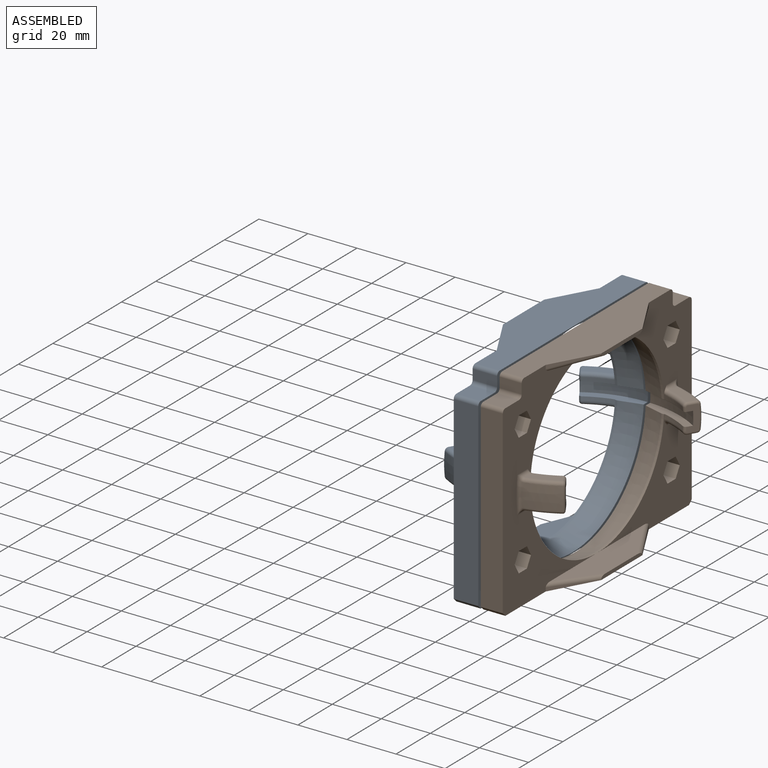
[diagram: assembled view]
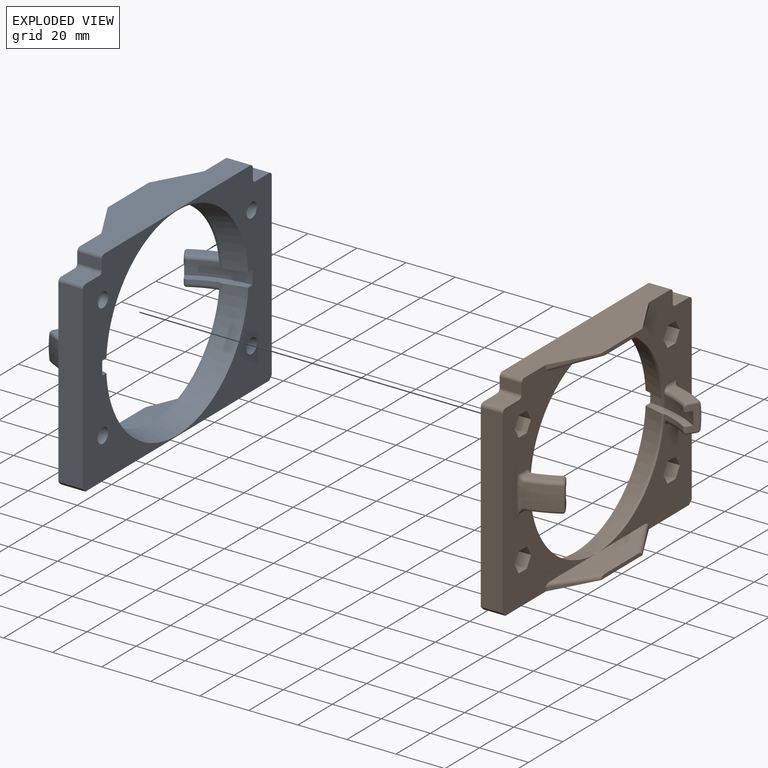
[diagram: exploded view]
GUIDED TOUR — FREECAD ASSEMBLY "Assembly_Flight-Cam-Screen"

This assembly has 2 components, labeled P0..P1 below (a component is one placed body or linked part; the same part can appear more than once), held together by 2 modeled joints. A joint is a constraint between two components; its type names the relative motion it leaves free:
  CYLINDRICAL — leaves both rotation about and translation along the listed axis free.
Axis/direction vectors are unit vectors and 'through' points are millimeter coordinates, both in the assembly's world frame.

MATES
  1. CYLINDRICAL [Cylindrical] "Joint001": P1 <-> P0, axis (-1.000, 0.000, 0.000) through (3.00, -43.30, 25.00) mm
  2. CYLINDRICAL [Cylindrical] "Joint002": P1 <-> P0, axis (1.000, 0.000, 0.000) through (3.00, -43.30, -25.00) mm

ASSEMBLY ORDER
  1. P1 — the base component [order verified]
  2. P0 [order verified]
Order-tag legend:
  [order verified] — this step's position reverses a verified removal order: the component was checked to insert without passing through the ones already placed.

Of the 2 components, 0 carry a construction recipe — the FreeCAD feature program (sketches with constraints, then the solid features that consume them) that regenerates the part from scratch, quoted from this document or from the linked companion document it references; the rest are supplied as boundary geometry only. The tour below walks the components in assembly order: each is shown spotlighted twice — in the assembled view, then in the exploded view, where a leader line traces a displaced component back to its assembled socket (components that stay in place when exploded have no leader line; saturated green if recipe-attached, orange if geometry-only; every other component desaturated gray) — followed by its recipe or geometry summary and the mates that hold it.
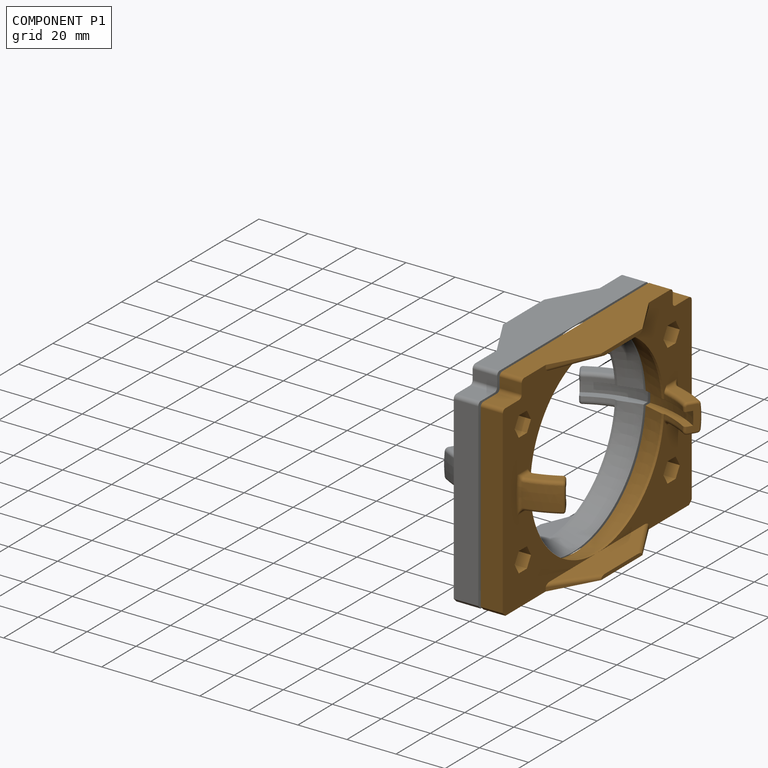
[diagram: component P1 — assembled]
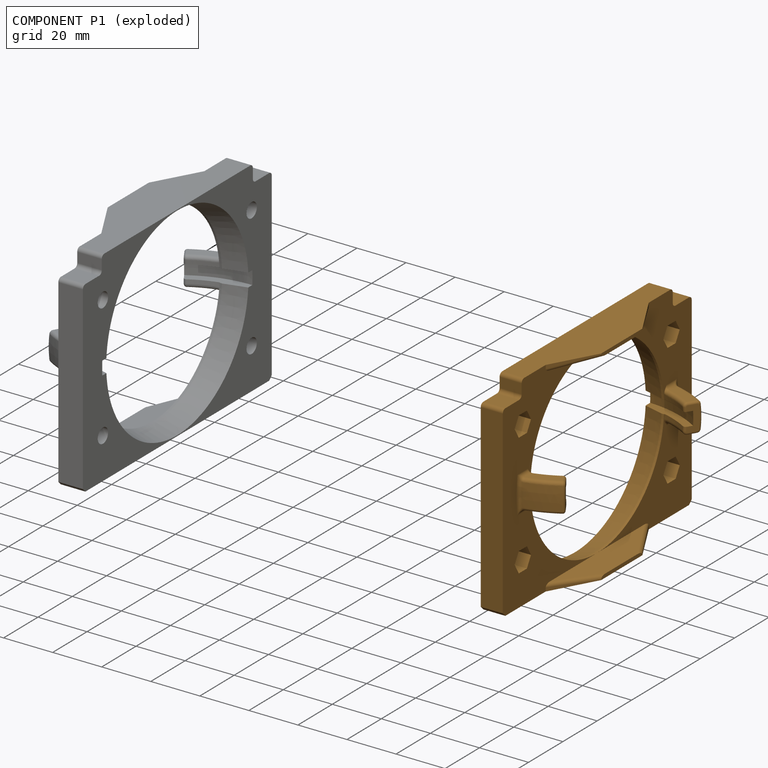
[diagram: component P1 — exploded]
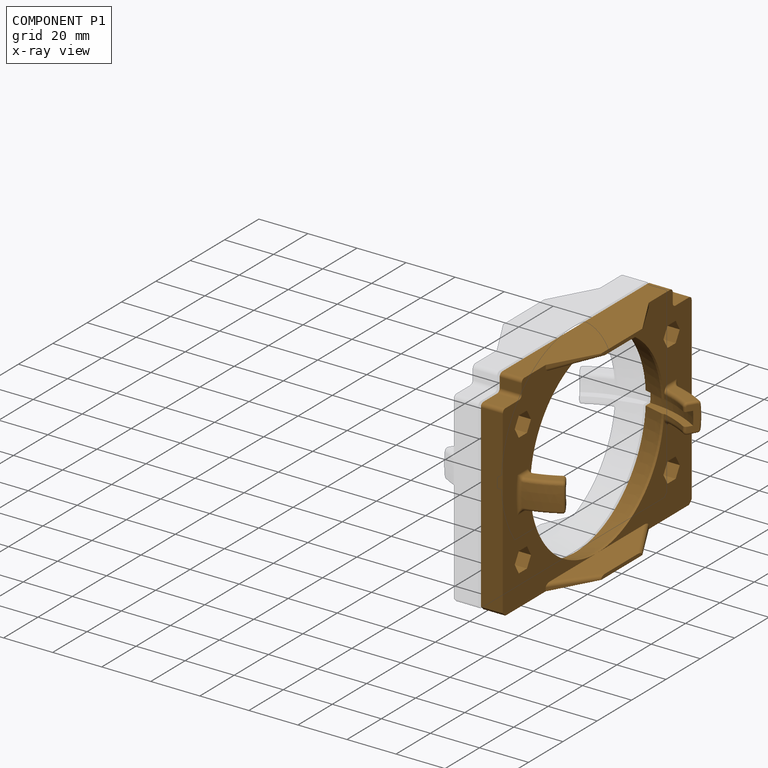
[diagram: component P1 — x-ray view]
COMPONENT P1 — geometry summary ("EyeScreen_Clamp"; no construction recipe available for this part):
  bounding box: 110.0 x 83.5 x 23.5 mm
  tessellated surface: 28,600 triangles
  volume: 37747 mm^3 (17% of its bounding box)
  symmetry: mirror-symmetric across its y mid-plane
Held by: CYLINDRICAL mate "Joint001" to P0; CYLINDRICAL mate "Joint002" to P0.
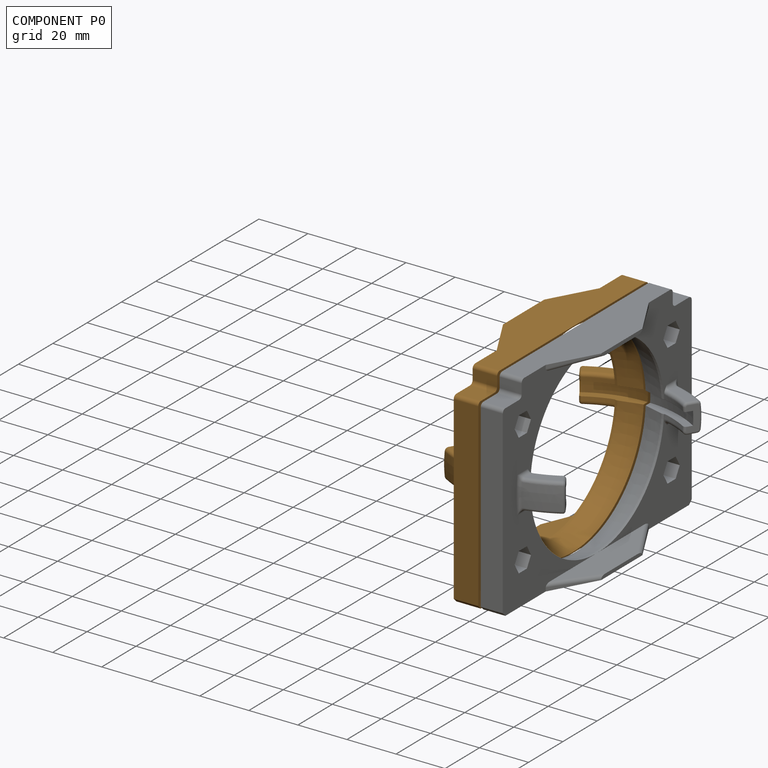
[diagram: component P0 — assembled]
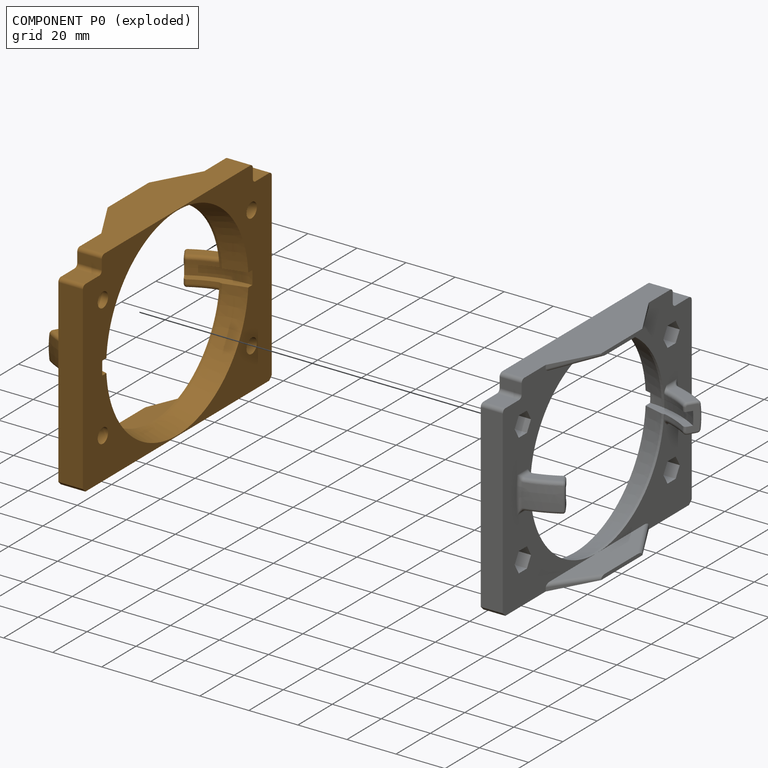
[diagram: component P0 — exploded]
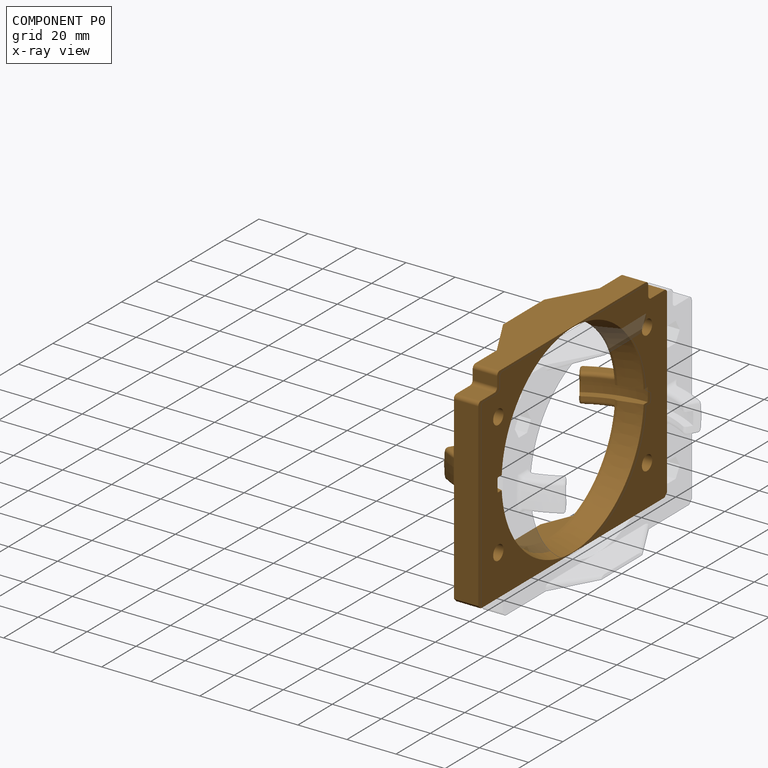
[diagram: component P0 — x-ray view]
COMPONENT P0 — geometry summary ("EyeScreen"; no construction recipe available for this part):
  bounding box: 110.0 x 83.5 x 24.5 mm
  tessellated surface: 29,508 triangles
  volume: 41374 mm^3 (18% of its bounding box)
  symmetry: mirror-symmetric across its y mid-plane
Held by: CYLINDRICAL mate "Joint001" to P1; CYLINDRICAL mate "Joint002" to P1.
PROVENANCE & LICENSES
Assembly and component geometry: a FreeCAD (.FCStd) document from a public repository crawl; components, placements and joints were extracted with FreeCAD and each solid tessellated.
Construction recipes: the document's own serialized feature recipes (and, for linked parts, the recipes of companion documents from the same project).
License: gpl-2.0.
Joints: native FreeCAD joints and A2plus constraints are mapped to standard mate types.
Verification: no construction recipes in this assembly (2 components, all geometry-only). Every component's tessellation passed the extraction mesh gates (mesh-volume checksum against the B-rep where available, bounding-box inflation <= 2%).
Renders: orthographic iso camera (az 35 / el 25); the floor grid conveys scale (grid pitch printed in each image; no ruler). In the exploded view each component is displaced by its stored offset vector: the offsets alone carry the explosion direction (mate normal/axis signs are not orientation cues and do not encode it), and separation distances are assigned per mate-chain, not proportionally to assembly-order depth.
